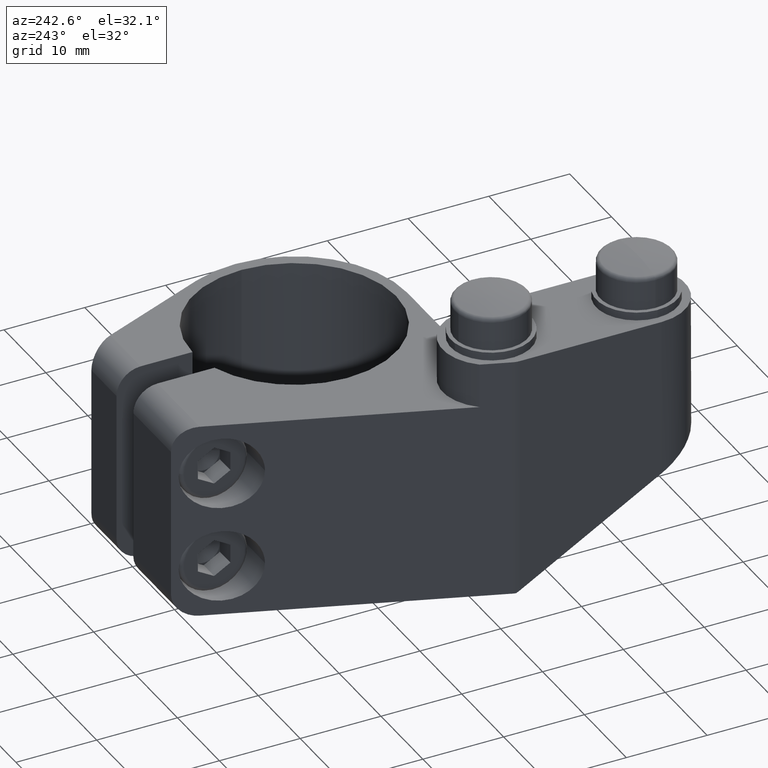
[diagram: clean part render]
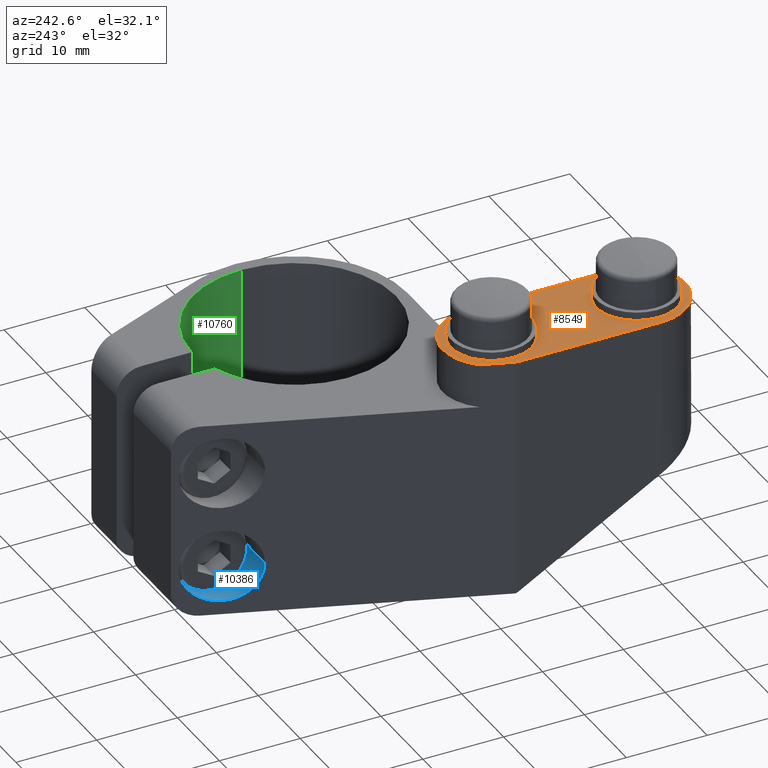
[diagram: same view with three faces highlighted in distinct colors, each labeled with its STEP entity id]
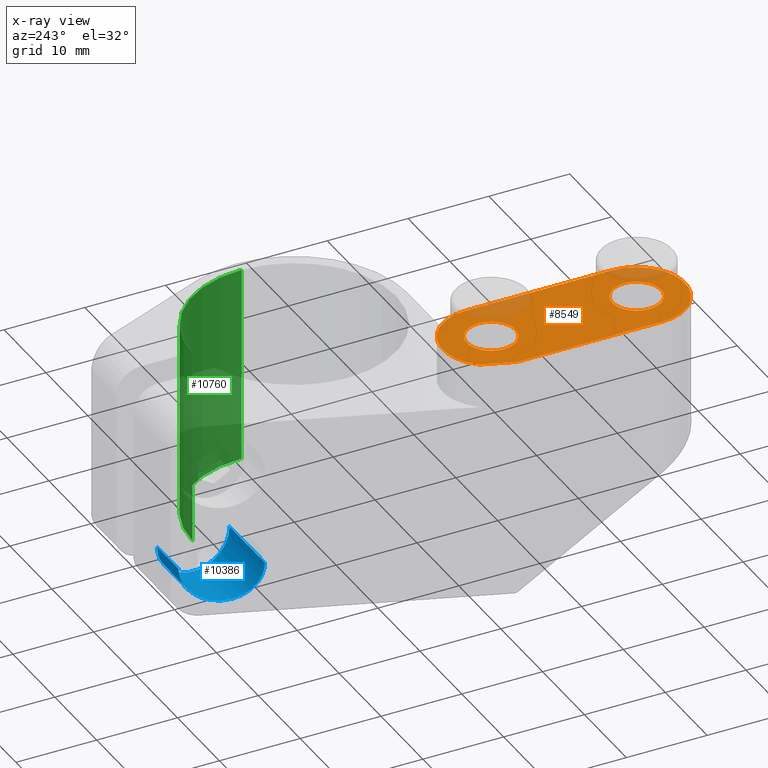
[diagram: x-ray of the same camera — body ghosted, the three highlighted faces saturated]
A machine part, auxiliary view with three faces highlighted in distinct colors.
The next image is the same camera in x-ray (body ghosted, the three faces saturated) — at least one of them is partly hidden behind the body in this view.
Their STEP definitions:

[orange] entity #8549 — the highlighted planar face has unit normal (0, 0, 1).
#12 = EDGE_CURVE ( 'NONE', #13256, #4015, #12553, .T. ) ;
#229 = EDGE_CURVE ( 'NONE', #2362, #931, #9731, .T. ) ;
#810 = DIRECTION ( 'NONE',  ( -0.3396444637775567500, -0.9405538996916954500, 0.0000000000000000000 ) ) ;
#931 = VERTEX_POINT ( 'NONE', #7091 ) ;
#1016 = CARTESIAN_POINT ( 'NONE',  ( -24.61569965870306800, -10.16655290102388100, 17.75000000000000400 ) ) ;
#1345 = DIRECTION ( 'NONE',  ( 1.000000000000000000, 0.0000000000000000000, 0.0000000000000000000 ) ) ;
#1462 = ORIENTED_EDGE ( 'NONE', *, *, #5765, .T. ) ;
#1465 = VECTOR ( 'NONE', #6743, 1000.000000000000000 ) ;
#1508 = VERTEX_POINT ( 'NONE', #10894 ) ;
#1790 = AXIS2_PLACEMENT_3D ( 'NONE', #11532, #17453, #7103 ) ;
#1846 = AXIS2_PLACEMENT_3D ( 'NONE', #12357, #18224, #13803 ) ;
#2263 = CARTESIAN_POINT ( 'NONE',  ( -26.00000000000000700, -3.758567531283082600E-015, 17.75000000000000400 ) ) ;
#2362 = VERTEX_POINT ( 'NONE', #1016 ) ;
#2381 = ORIENTED_EDGE ( 'NONE', *, *, #229, .T. ) ;
#2391 = CIRCLE ( 'NONE', #1790, 6.000000000000003600 ) ;
#3005 = CARTESIAN_POINT ( 'NONE',  ( -20.00000000000000000, -32.00000000000000000, 17.75000000000000400 ) ) ;
#3443 = FACE_BOUND ( 'NONE', #3727, .T. ) ;
#3727 = EDGE_LOOP ( 'NONE', ( #5451, #5206 ) ) ;
#3987 = EDGE_CURVE ( 'NONE', #931, #5219, #17385, .T. ) ;
#4015 = VERTEX_POINT ( 'NONE', #4916 ) ;
#4096 = CARTESIAN_POINT ( 'NONE',  ( -13.99999999999999800, -32.00000000000000000, 17.75000000000000400 ) ) ;
#4108 = EDGE_CURVE ( 'NONE', #5219, #18608, #13155, .T. ) ;
#4264 = CARTESIAN_POINT ( 'NONE',  ( -13.99999999999999800, 0.0000000000000000000, 17.75000000000000400 ) ) ;
#4290 = CARTESIAN_POINT ( 'NONE',  ( -20.00000000000000400, -14.00000000000000200, 17.75000000000000400 ) ) ;
#4495 = DIRECTION ( 'NONE',  ( 1.000000000000000000, 0.0000000000000000000, 0.0000000000000000000 ) ) ;
#4887 = EDGE_CURVE ( 'NONE', #2362, #12100, #2391, .T. ) ;
#4902 = CARTESIAN_POINT ( 'NONE',  ( 0.0000000000000000000, 0.0000000000000000000, 17.75000000000000400 ) ) ;
#4916 = CARTESIAN_POINT ( 'NONE',  ( -17.00000000000000000, -14.00000000000000200, 17.75000000000000400 ) ) ;
#4986 = CARTESIAN_POINT ( 'NONE',  ( -23.50000000000000400, -14.43756123423255900, 17.75000000000000400 ) ) ;
#5066 = AXIS2_PLACEMENT_3D ( 'NONE', #10897, #6608, #17149 ) ;
#5114 = DIRECTION ( 'NONE',  ( -0.0000000000000000000, 0.0000000000000000000, 1.000000000000000000 ) ) ;
#5145 = CIRCLE ( 'NONE', #6042, 6.000000000000000000 ) ;
#5167 = DIRECTION ( 'NONE',  ( -0.0000000000000000000, 0.0000000000000000000, 1.000000000000000000 ) ) ;
#5206 = ORIENTED_EDGE ( 'NONE', *, *, #14128, .T. ) ;
#5219 = VERTEX_POINT ( 'NONE', #11291 ) ;
#5451 = ORIENTED_EDGE ( 'NONE', *, *, #8455, .T. ) ;
#5765 = EDGE_CURVE ( 'NONE', #18608, #13176, #5145, .T. ) ;
#5781 = VECTOR ( 'NONE', #810, 1000.000000000000100 ) ;
#5913 = AXIS2_PLACEMENT_3D ( 'NONE', #4986, #5114, #6358 ) ;
#6000 = DIRECTION ( 'NONE',  ( 0.0000000000000000000, -0.0000000000000000000, -1.000000000000000000 ) ) ;
#6042 = AXIS2_PLACEMENT_3D ( 'NONE', #11391, #7482, #1345 ) ;
#6358 = DIRECTION ( 'NONE',  ( 1.000000000000000000, 0.0000000000000000000, 0.0000000000000000000 ) ) ;
#6608 = DIRECTION ( 'NONE',  ( 0.0000000000000000000, -0.0000000000000000000, -1.000000000000000000 ) ) ;
#6743 = DIRECTION ( 'NONE',  ( 1.445602896647339200E-016, -1.000000000000000000, 0.0000000000000000000 ) ) ;
#7082 = AXIS2_PLACEMENT_3D ( 'NONE', #4902, #5167, #12611 ) ;
#7091 = CARTESIAN_POINT ( 'NONE',  ( -25.85138474922924300, -13.58845007478866800, 17.75000000000000400 ) ) ;
#7103 = DIRECTION ( 'NONE',  ( 1.000000000000000000, 8.673617379884030500E-016, 0.0000000000000000000 ) ) ;
#7482 = DIRECTION ( 'NONE',  ( -0.0000000000000000000, 0.0000000000000000000, 1.000000000000000000 ) ) ;
#7743 = ORIENTED_EDGE ( 'NONE', *, *, #17168, .T. ) ;
#8172 = CARTESIAN_POINT ( 'NONE',  ( -18.52832764505119200, 6.690784982935156200, 17.75000000000000400 ) ) ;
#8455 = EDGE_CURVE ( 'NONE', #1508, #8854, #17763, .T. ) ;
#8549 = ADVANCED_FACE ( 'NONE', ( #13958, #3443, #11374 ), #12547, .T. ) ;
#8643 = DIRECTION ( 'NONE',  ( 0.0000000000000000000, 1.000000000000000000, -0.0000000000000000000 ) ) ;
#8795 = CARTESIAN_POINT ( 'NONE',  ( -23.00000000000000700, -14.00000000000000200, 17.75000000000000400 ) ) ;
#8854 = VERTEX_POINT ( 'NONE', #17869 ) ;
#9060 = CIRCLE ( 'NONE', #18958, 3.000000000000002700 ) ;
#9731 = LINE ( 'NONE', #8172, #5781 ) ;
#9986 = CARTESIAN_POINT ( 'NONE',  ( -13.99999999999999800, -13.99999999999999800, 17.75000000000000400 ) ) ;
#10155 = VECTOR ( 'NONE', #8643, 1000.000000000000000 ) ;
#10893 = EDGE_CURVE ( 'NONE', #4015, #13256, #15957, .T. ) ;
#10894 = CARTESIAN_POINT ( 'NONE',  ( -16.99999999999999600, -32.00000000000000000, 17.75000000000000400 ) ) ;
#10897 = CARTESIAN_POINT ( 'NONE',  ( -20.00000000000000000, -32.00000000000000000, 17.75000000000000400 ) ) ;
#10934 = CARTESIAN_POINT ( 'NONE',  ( -26.00000000000000400, -31.99999999999999300, 17.75000000000000400 ) ) ;
#11291 = CARTESIAN_POINT ( 'NONE',  ( -26.00000000000000400, -14.43756123423255900, 17.75000000000000400 ) ) ;
#11374 = FACE_OUTER_BOUND ( 'NONE', #13634, .T. ) ;
#11391 = CARTESIAN_POINT ( 'NONE',  ( -20.00000000000000000, -32.00000000000000000, 17.75000000000000400 ) ) ;
#11436 = ORIENTED_EDGE ( 'NONE', *, *, #4108, .T. ) ;
#11532 = CARTESIAN_POINT ( 'NONE',  ( -20.00000000000000000, -13.99999999999999800, 17.75000000000000400 ) ) ;
#12100 = VERTEX_POINT ( 'NONE', #9986 ) ;
#12357 = CARTESIAN_POINT ( 'NONE',  ( -20.00000000000000400, -14.00000000000000200, 17.75000000000000400 ) ) ;
#12547 = PLANE ( 'NONE',  #7082 ) ;
#12553 = CIRCLE ( 'NONE', #18577, 3.000000000000002700 ) ;
#12611 = DIRECTION ( 'NONE',  ( 1.000000000000000000, 0.0000000000000000000, 0.0000000000000000000 ) ) ;
#13155 = LINE ( 'NONE', #2263, #1465 ) ;
#13176 = VERTEX_POINT ( 'NONE', #4096 ) ;
#13251 = ORIENTED_EDGE ( 'NONE', *, *, #4887, .F. ) ;
#13256 = VERTEX_POINT ( 'NONE', #8795 ) ;
#13634 = EDGE_LOOP ( 'NONE', ( #2381, #18815, #11436, #1462, #7743, #13251 ) ) ;
#13803 = DIRECTION ( 'NONE',  ( 1.000000000000000000, 0.0000000000000000000, 0.0000000000000000000 ) ) ;
#13958 = FACE_BOUND ( 'NONE', #15543, .T. ) ;
#14128 = EDGE_CURVE ( 'NONE', #8854, #1508, #9060, .T. ) ;
#15543 = EDGE_LOOP ( 'NONE', ( #18213, #16818 ) ) ;
#15957 = CIRCLE ( 'NONE', #1846, 3.000000000000002700 ) ;
#16265 = DIRECTION ( 'NONE',  ( 0.0000000000000000000, -0.0000000000000000000, -1.000000000000000000 ) ) ;
#16818 = ORIENTED_EDGE ( 'NONE', *, *, #12, .T. ) ;
#17149 = DIRECTION ( 'NONE',  ( 1.000000000000000000, 0.0000000000000000000, 0.0000000000000000000 ) ) ;
#17168 = EDGE_CURVE ( 'NONE', #13176, #12100, #18404, .T. ) ;
#17385 = CIRCLE ( 'NONE', #5913, 2.499999999999998700 ) ;
#17453 = DIRECTION ( 'NONE',  ( 0.0000000000000000000, -0.0000000000000000000, -1.000000000000000000 ) ) ;
#17763 = CIRCLE ( 'NONE', #5066, 3.000000000000002700 ) ;
#17771 = DIRECTION ( 'NONE',  ( 1.000000000000000000, 0.0000000000000000000, 0.0000000000000000000 ) ) ;
#17869 = CARTESIAN_POINT ( 'NONE',  ( -23.00000000000000400, -32.00000000000000000, 17.75000000000000400 ) ) ;
#18213 = ORIENTED_EDGE ( 'NONE', *, *, #10893, .T. ) ;
#18224 = DIRECTION ( 'NONE',  ( 0.0000000000000000000, -0.0000000000000000000, -1.000000000000000000 ) ) ;
#18404 = LINE ( 'NONE', #4264, #10155 ) ;
#18577 = AXIS2_PLACEMENT_3D ( 'NONE', #4290, #16265, #17771 ) ;
#18608 = VERTEX_POINT ( 'NONE', #10934 ) ;
#18815 = ORIENTED_EDGE ( 'NONE', *, *, #3987, .T. ) ;
#18958 = AXIS2_PLACEMENT_3D ( 'NONE', #3005, #6000, #4495 ) ;

[blue] entity #10386 — the highlighted cylindrical surface (partial cylindrical patch) has radius 4.5 mm, axis along (1, 0, 0).
#995 = LINE ( 'NONE', #4472, #4026 ) ;
#1476 = DIRECTION ( 'NONE',  ( 1.000000000000000000, 1.817521686122382100E-016, 0.0000000000000000000 ) ) ;
#1931 = DIRECTION ( 'NONE',  ( 1.000000000000000000, 1.817521686122382100E-016, 0.0000000000000000000 ) ) ;
#2119 = ORIENTED_EDGE ( 'NONE', *, *, #13105, .F. ) ;
#2211 = VERTEX_POINT ( 'NONE', #6492 ) ;
#2939 = CARTESIAN_POINT ( 'NONE',  ( -3.999999999999998200, 16.70000000000000300, -6.000000000000000000 ) ) ;
#2994 = DIRECTION ( 'NONE',  ( -1.927470528863118600E-016, 1.000000000000000000, 0.0000000000000000000 ) ) ;
#3909 = EDGE_CURVE ( 'NONE', #11016, #5973, #5209, .T. ) ;
#3966 = CARTESIAN_POINT ( 'NONE',  ( -13.28888888888888800, 21.20000000000000300, -6.000000000000000000 ) ) ;
#4026 = VECTOR ( 'NONE', #1476, 1000.000000000000000 ) ;
#4161 = CARTESIAN_POINT ( 'NONE',  ( -13.28888888888888800, 21.19999999999999600, -14.99999999999999600 ) ) ;
#4472 = CARTESIAN_POINT ( 'NONE',  ( -3.999999999999997300, 12.20000000000000500, -5.999999999999999100 ) ) ;
#5209 = LINE ( 'NONE', #16895, #7322 ) ;
#5343 = CARTESIAN_POINT ( 'NONE',  ( -16.53888888888888800, 12.20000000000000300, -5.999999999999999100 ) ) ;
#5973 = VERTEX_POINT ( 'NONE', #17596 ) ;
#6492 = CARTESIAN_POINT ( 'NONE',  ( -8.088888888888888600, 12.20000000000000600, -5.999999999999999100 ) ) ;
#6968 = CARTESIAN_POINT ( 'NONE',  ( -8.088888888888888600, 16.70000000000000300, -6.000000000000000000 ) ) ;
#7322 = VECTOR ( 'NONE', #1931, 1000.000000000000000 ) ;
#7374 = DIRECTION ( 'NONE',  ( 1.000000000000000000, 1.817521686122382100E-016, 0.0000000000000000000 ) ) ;
#7932 = CIRCLE ( 'NONE', #19180, 4.499999999999997300 ) ;
#8735 = DIRECTION ( 'NONE',  ( 0.0000000000000000000, 1.000000000000000000, 0.0000000000000000000 ) ) ;
#9407 = ORIENTED_EDGE ( 'NONE', *, *, #10836, .T. ) ;
#10386 = ADVANCED_FACE ( 'NONE', ( #16007 ), #16342, .F. ) ;
#10836 = EDGE_CURVE ( 'NONE', #15292, #2211, #995, .T. ) ;
#11016 = VERTEX_POINT ( 'NONE', #16962 ) ;
#11316 = ORIENTED_EDGE ( 'NONE', *, *, #17989, .F. ) ;
#13105 = EDGE_CURVE ( 'NONE', #5973, #2211, #7932, .T. ) ;
#13592 = AXIS2_PLACEMENT_3D ( 'NONE', #2939, #7374, #2994 ) ;
#15286 = ORIENTED_EDGE ( 'NONE', *, *, #3909, .F. ) ;
#15292 = VERTEX_POINT ( 'NONE', #5343 ) ;
#15850 = EDGE_LOOP ( 'NONE', ( #11316, #9407, #2119, #15286 ) ) ;
#16007 = FACE_OUTER_BOUND ( 'NONE', #15850, .T. ) ;
#16342 = CYLINDRICAL_SURFACE ( 'NONE', #13592, 4.500000000000000900 ) ;
#16895 = CARTESIAN_POINT ( 'NONE',  ( -3.999999999999999100, 21.20000000000000300, -6.000000000000000000 ) ) ;
#16962 = CARTESIAN_POINT ( 'NONE',  ( -13.28888888888888800, 21.20000000000000300, -6.000000000000000000 ) ) ;
#17452 = DIRECTION ( 'NONE',  ( -1.000000000000000000, -1.817521686122382100E-016, -0.0000000000000000000 ) ) ;
#17596 = CARTESIAN_POINT ( 'NONE',  ( -8.088888888888888600, 21.19999999999999900, -6.000000000000000000 ) ) ;
#17649 = CARTESIAN_POINT ( 'NONE',  ( -16.53888888888888800, 12.20000000000000300, -5.999999999999999100 ) ) ;
#17989 = EDGE_CURVE ( 'NONE', #15292, #11016, #18175, .T. ) ;
#18175 =( BOUNDED_CURVE ( )  B_SPLINE_CURVE ( 3, ( #17649, #18913, #4161, #3966 ),
 .UNSPECIFIED., .F., .F. ) 
 B_SPLINE_CURVE_WITH_KNOTS ( ( 4, 4 ),
 ( 3.141592653589793100, 6.283185307179586200 ),
 .UNSPECIFIED. ) 
 CURVE ( )  GEOMETRIC_REPRESENTATION_ITEM ( )  RATIONAL_B_SPLINE_CURVE ( ( 1.000000000000000000, 0.3333333333333333700, 0.3333333333333333700, 1.000000000000000000 ) ) 
 REPRESENTATION_ITEM ( '' )  );
#18913 = CARTESIAN_POINT ( 'NONE',  ( -16.53888888888888800, 12.20000000000000100, -14.99999999999999600 ) ) ;
#19180 = AXIS2_PLACEMENT_3D ( 'NONE', #6968, #17452, #8735 ) ;

[green] entity #10760 — the highlighted cylindrical surface (partial cylindrical patch) has radius 12.6 mm, axis along (-0, -0, -1).
#404 = AXIS2_PLACEMENT_3D ( 'NONE', #16859, #18524, #1965 ) ;
#993 = AXIS2_PLACEMENT_3D ( 'NONE', #18239, #4677, #15075 ) ;
#1676 = EDGE_CURVE ( 'NONE', #13318, #1986, #10160, .T. ) ;
#1965 = DIRECTION ( 'NONE',  ( 1.000000000000000000, 0.0000000000000000000, 0.0000000000000000000 ) ) ;
#1986 = VERTEX_POINT ( 'NONE', #3967 ) ;
#2319 = VERTEX_POINT ( 'NONE', #15782 ) ;
#3549 = FACE_OUTER_BOUND ( 'NONE', #13682, .T. ) ;
#3967 = CARTESIAN_POINT ( 'NONE',  ( 12.60000000000000000, 1.543054966925665100E-015, 12.25000000000000000 ) ) ;
#4453 = VECTOR ( 'NONE', #5662, 1000.000000000000000 ) ;
#4677 = DIRECTION ( 'NONE',  ( -0.0000000000000000000, -0.0000000000000000000, -1.000000000000000000 ) ) ;
#4899 = EDGE_CURVE ( 'NONE', #13318, #5850, #14075, .T. ) ;
#5189 = ORIENTED_EDGE ( 'NONE', *, *, #5649, .F. ) ;
#5649 = EDGE_CURVE ( 'NONE', #1986, #2319, #9572, .T. ) ;
#5662 = DIRECTION ( 'NONE',  ( -0.0000000000000000000, -0.0000000000000000000, -1.000000000000000000 ) ) ;
#5726 = DIRECTION ( 'NONE',  ( -0.0000000000000000000, -0.0000000000000000000, -1.000000000000000000 ) ) ;
#5850 = VERTEX_POINT ( 'NONE', #11773 ) ;
#7344 = AXIS2_PLACEMENT_3D ( 'NONE', #8608, #5726, #19171 ) ;
#7865 = CARTESIAN_POINT ( 'NONE',  ( 7.715274834628325400E-016, 12.60000000000000000, 12.25000000000000000 ) ) ;
#8480 = CARTESIAN_POINT ( 'NONE',  ( 7.715274834628325400E-016, 12.60000000000000000, 12.25000000000000000 ) ) ;
#8608 = CARTESIAN_POINT ( 'NONE',  ( 0.0000000000000000000, 0.0000000000000000000, 12.25000000000000000 ) ) ;
#9572 = LINE ( 'NONE', #15860, #4453 ) ;
#10160 = CIRCLE ( 'NONE', #404, 12.60000000000000000 ) ;
#10760 = ADVANCED_FACE ( 'NONE', ( #3549 ), #15008, .F. ) ;
#11773 = CARTESIAN_POINT ( 'NONE',  ( 7.715274834628325400E-016, 12.60000000000000000, -12.25000000000000000 ) ) ;
#11897 = CIRCLE ( 'NONE', #993, 12.60000000000000000 ) ;
#12333 = ORIENTED_EDGE ( 'NONE', *, *, #1676, .F. ) ;
#13001 = EDGE_CURVE ( 'NONE', #5850, #2319, #11897, .T. ) ;
#13318 = VERTEX_POINT ( 'NONE', #7865 ) ;
#13682 = EDGE_LOOP ( 'NONE', ( #5189, #12333, #14522, #19062 ) ) ;
#14075 = LINE ( 'NONE', #8480, #16882 ) ;
#14522 = ORIENTED_EDGE ( 'NONE', *, *, #4899, .T. ) ;
#15008 = CYLINDRICAL_SURFACE ( 'NONE', #7344, 12.60000000000000000 ) ;
#15075 = DIRECTION ( 'NONE',  ( 1.000000000000000000, 0.0000000000000000000, 0.0000000000000000000 ) ) ;
#15782 = CARTESIAN_POINT ( 'NONE',  ( 12.60000000000000000, 1.543054966925665100E-015, -12.25000000000000000 ) ) ;
#15860 = CARTESIAN_POINT ( 'NONE',  ( 12.60000000000000000, 1.543054966925665100E-015, 12.25000000000000000 ) ) ;
#16859 = CARTESIAN_POINT ( 'NONE',  ( 0.0000000000000000000, 0.0000000000000000000, 12.25000000000000000 ) ) ;
#16882 = VECTOR ( 'NONE', #18979, 1000.000000000000000 ) ;
#18239 = CARTESIAN_POINT ( 'NONE',  ( 0.0000000000000000000, 0.0000000000000000000, -12.25000000000000000 ) ) ;
#18524 = DIRECTION ( 'NONE',  ( -0.0000000000000000000, -0.0000000000000000000, -1.000000000000000000 ) ) ;
#18979 = DIRECTION ( 'NONE',  ( -0.0000000000000000000, -0.0000000000000000000, -1.000000000000000000 ) ) ;
#19062 = ORIENTED_EDGE ( 'NONE', *, *, #13001, .T. ) ;
#19171 = DIRECTION ( 'NONE',  ( -1.000000000000000000, 0.0000000000000000000, 0.0000000000000000000 ) ) ;